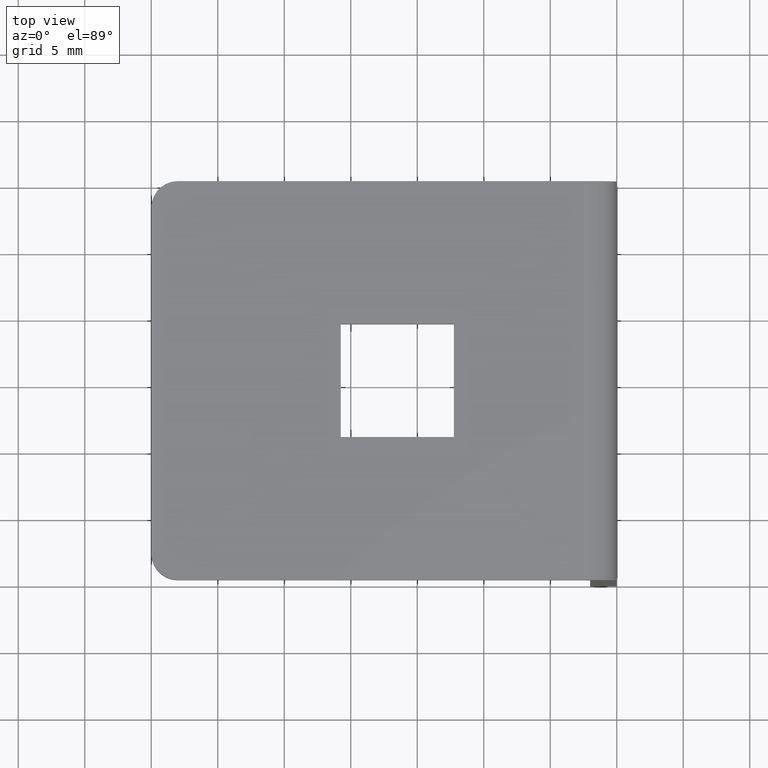
[diagram: clean part render]
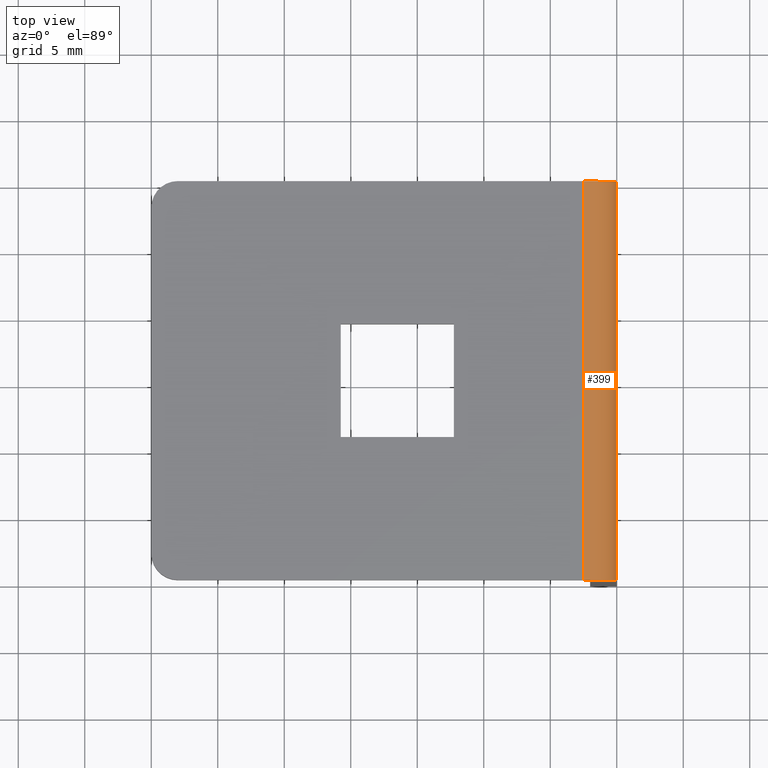
[diagram: same view with one face highlighted and labeled with its STEP entity id]
A machine part, top view. The second image highlights one B-rep face of the part: STEP entity #399.
In plain terms, the highlighted cylindrical surface (edge-blend (fillet) strip) has radius 2.5 mm, axis along (0, 1, 0).
Its self-contained STEP definition (entity closure, byte-faithful):
#51=FACE_OUTER_BOUND('',#77,.T.);
#77=EDGE_LOOP('',(#336,#337,#338,#339));
#105=LINE('',#618,#145);
#122=LINE('',#658,#162);
#145=VECTOR('',#498,30.);
#162=VECTOR('',#535,30.);
#177=CIRCLE('',#435,2.5);
#178=CIRCLE('',#436,2.5);
#192=VERTEX_POINT('',#593);
#197=VERTEX_POINT('',#606);
#201=VERTEX_POINT('',#616);
#214=VERTEX_POINT('',#657);
#241=EDGE_CURVE('',#201,#197,#105,.T.);
#260=EDGE_CURVE('',#192,#214,#122,.T.);
#261=EDGE_CURVE('',#197,#192,#177,.T.);
#262=EDGE_CURVE('',#214,#201,#178,.T.);
#336=ORIENTED_EDGE('',*,*,#260,.F.);
#337=ORIENTED_EDGE('',*,*,#261,.F.);
#338=ORIENTED_EDGE('',*,*,#241,.F.);
#339=ORIENTED_EDGE('',*,*,#262,.F.);
#382=CYLINDRICAL_SURFACE('',#434,2.5);
#399=ADVANCED_FACE('',(#51),#382,.T.);
#434=AXIS2_PLACEMENT_3D('',#656,#533,#534);
#435=AXIS2_PLACEMENT_3D('',#659,#536,#537);
#436=AXIS2_PLACEMENT_3D('',#660,#538,#539);
#498=DIRECTION('',(0.,1.,0.));
#533=DIRECTION('center_axis',(0.,1.,0.));
#534=DIRECTION('ref_axis',(0.,0.,1.));
#535=DIRECTION('',(-1.74451110989651E-19,-1.,2.99205374413381E-34));
#536=DIRECTION('center_axis',(0.,1.,0.));
#537=DIRECTION('ref_axis',(3.5527136788005E-15,0.,1.));
#538=DIRECTION('center_axis',(0.,-1.,0.));
#539=DIRECTION('ref_axis',(1.,0.,-1.72084568816899E-15));
#593=CARTESIAN_POINT('',(35.,30.,-0.500000000000003));
#606=CARTESIAN_POINT('',(32.5,30.,2.));
#616=CARTESIAN_POINT('',(32.5,0.,2.));
#618=CARTESIAN_POINT('',(32.5,7.5,2.));
#656=CARTESIAN_POINT('Origin',(32.5,15.,-0.499999999999998));
#657=CARTESIAN_POINT('',(35.,0.,-0.500000000000003));
#658=CARTESIAN_POINT('',(35.,15.,-0.500000000000007));
#659=CARTESIAN_POINT('Origin',(32.5,30.,-0.499999999999998));
#660=CARTESIAN_POINT('Origin',(32.5,0.,-0.499999999999998));